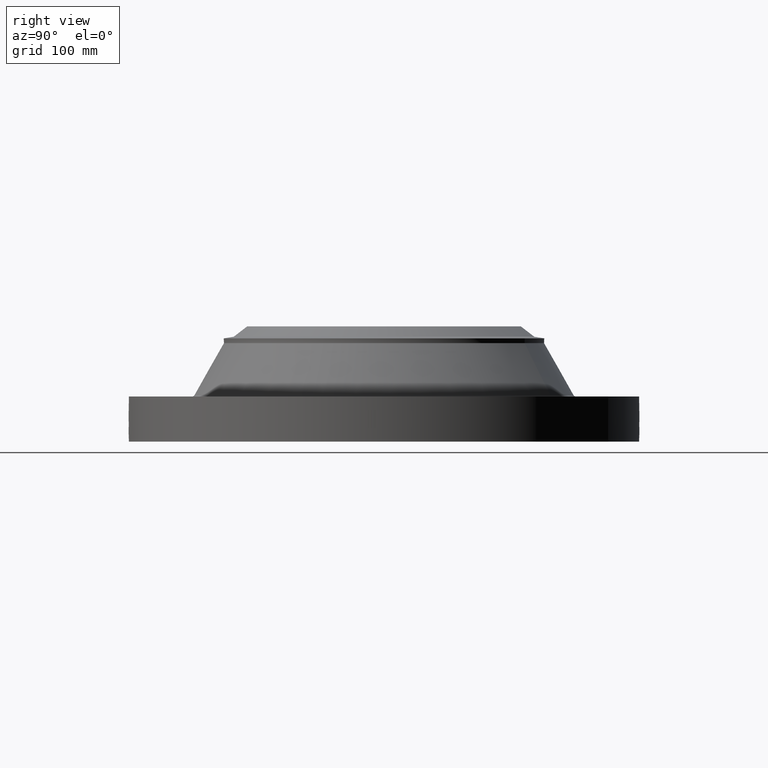
[diagram: clean part render]
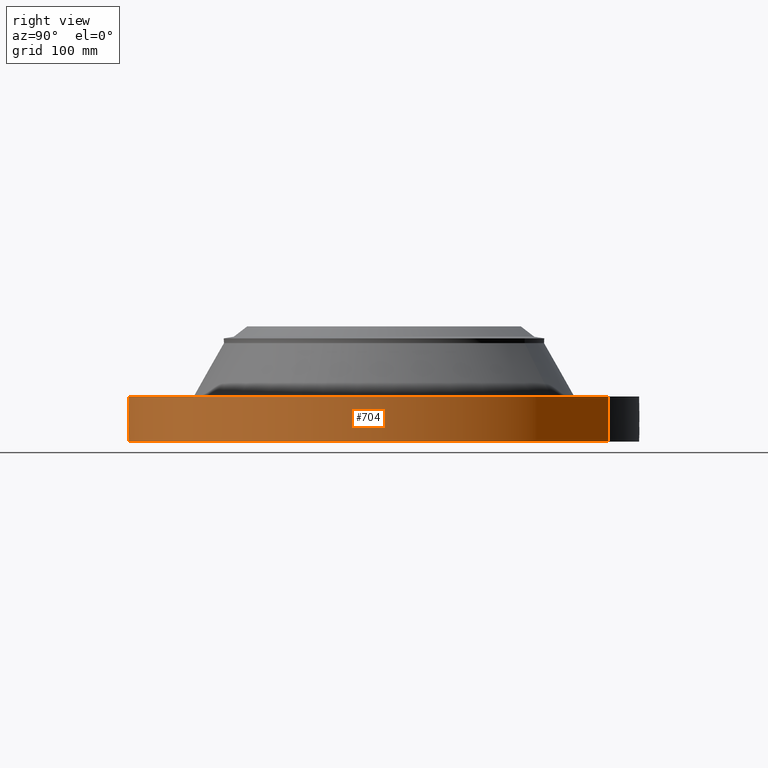
[diagram: same view with one face highlighted and labeled with its STEP entity id]
A machine part, right view. The second image highlights one B-rep face of the part: STEP entity #704.
In plain terms, the highlighted cylindrical surface (partial cylindrical patch) has radius 323.85 mm, axis along (0, 0, -1).
Its self-contained STEP definition (entity closure, byte-faithful):
#38=AXIS2_PLACEMENT_3D('Cylinder Axis2P3D',#35,#36,#37) ;
#169=AXIS2_PLACEMENT_3D('Circle Axis2P3D',#167,#168,$) ;
#608=AXIS2_PLACEMENT_3D('Circle Axis2P3D',#606,#607,$) ;
#35=CARTESIAN_POINT('Axis2P3D Location',(0.,0.,2.93500000001)) ;
#44=CARTESIAN_POINT('Vertex',(-6.11267561723,-11.1891776641,0.0600000000002)) ;
#46=CARTESIAN_POINT('Vertex',(6.11267561723,11.1891776641,0.0600000000002)) ;
#49=CARTESIAN_POINT('Line Origine',(-6.11267561723,-11.1891776641,1.185)) ;
#53=CARTESIAN_POINT('Vertex',(-6.11267561723,-11.1891776641,2.31000000001)) ;
#60=CARTESIAN_POINT('Vertex',(6.11267561723,11.1891776641,2.31000000001)) ;
#63=CARTESIAN_POINT('Line Origine',(6.11267561723,11.1891776641,1.185)) ;
#167=CARTESIAN_POINT('Axis2P3D Location',(0.,0.,0.0600000000002)) ;
#606=CARTESIAN_POINT('Axis2P3D Location',(0.,0.,2.31000000001)) ;
#618=CARTESIAN_POINT('Control Point',(0.000716221076503,-12.7499999799,1.29411846088)) ;
#619=CARTESIAN_POINT('Control Point',(0.0192056909289,-12.7499989413,1.2940811042)) ;
#620=CARTESIAN_POINT('Control Point',(0.0376918862538,-12.749957358,1.29259135831)) ;
#621=CARTESIAN_POINT('Control Point',(0.0559484449228,-12.7498772454,1.2896676695)) ;
#622=CARTESIAN_POINT('Vertex',(0.000715799889839,-12.74999998,1.29411851024)) ;
#624=CARTESIAN_POINT('Vertex',(0.0559392979336,-12.7498775403,1.28966915328)) ;
#628=CARTESIAN_POINT('Control Point',(0.055939200232,-12.749877286,1.28966859718)) ;
#629=CARTESIAN_POINT('Control Point',(0.0961344830542,-12.749700932,1.28514555478)) ;
#630=CARTESIAN_POINT('Control Point',(0.135662252488,-12.7493301535,1.27330266976)) ;
#631=CARTESIAN_POINT('Control Point',(0.172040385174,-12.7488392455,1.25494868271)) ;
#632=CARTESIAN_POINT('Vertex',(0.172040385174,-12.7488392455,1.25494868271)) ;
#636=CARTESIAN_POINT('Control Point',(0.030810823393,-12.7499627723,0.531174008101)) ;
#637=CARTESIAN_POINT('Control Point',(0.0999546104459,-12.7497956834,0.539935338982)) ;
#638=CARTESIAN_POINT('Control Point',(0.166759413663,-12.7491655306,0.564146634126)) ;
#639=CARTESIAN_POINT('Control Point',(0.226389957233,-12.7481446874,0.602973146401)) ;
#640=CARTESIAN_POINT('Control Point',(0.298759222751,-12.7465677593,0.677010268031)) ;
#641=CARTESIAN_POINT('Control Point',(0.343480925529,-12.7453828601,0.767215712475)) ;
#642=CARTESIAN_POINT('Control Point',(0.35492620966,-12.745063309,0.797930279804)) ;
#643=CARTESIAN_POINT('Control Point',(0.373429793533,-12.7445343214,0.869245218125)) ;
#644=CARTESIAN_POINT('Control Point',(0.37510475111,-12.7444792671,0.94259696981)) ;
#645=CARTESIAN_POINT('Control Point',(0.370729704741,-12.7446111718,0.983234573259)) ;
#646=CARTESIAN_POINT('Control Point',(0.348316563881,-12.745269017,1.07561109925)) ;
#647=CARTESIAN_POINT('Control Point',(0.299005494497,-12.7465456064,1.15696170482)) ;
#648=CARTESIAN_POINT('Control Point',(0.262643848587,-12.7473952472,1.19786903557)) ;
#649=CARTESIAN_POINT('Control Point',(0.219548986002,-12.7481981363,1.23097900004)) ;
#650=CARTESIAN_POINT('Control Point',(0.172040385174,-12.7488392455,1.25494868271)) ;
#651=CARTESIAN_POINT('Vertex',(0.030810823393,-12.7499627723,0.531174008101)) ;
#655=CARTESIAN_POINT('Control Point',(0.030810823393,-12.7499627723,0.531174008101)) ;
#656=CARTESIAN_POINT('Control Point',(0.0205353999324,-12.7499876033,0.530872367684)) ;
#657=CARTESIAN_POINT('Control Point',(0.0102531277833,-12.7500000022,0.530939425497)) ;
#658=CARTESIAN_POINT('Control Point',(-2.72878352125E-006,-12.7500000001,0.531374667805)) ;
#659=CARTESIAN_POINT('Vertex',(-2.72878354373E-006,-12.7500000001,0.531374667805)) ;
#663=CARTESIAN_POINT('Control Point',(-0.192797685506,-12.7485422325,0.587096993604)) ;
#664=CARTESIAN_POINT('Control Point',(-0.149071702689,-12.7492035056,0.561854438163)) ;
#665=CARTESIAN_POINT('Control Point',(-0.101128961577,-12.7497293521,0.543715224091)) ;
#666=CARTESIAN_POINT('Control Point',(-0.0508105141079,-12.7499999892,0.53353086573)) ;
#667=CARTESIAN_POINT('Control Point',(-2.7287835439E-006,-12.7500000001,0.531374667805)) ;
#668=CARTESIAN_POINT('Vertex',(-0.192797685506,-12.7485422325,0.587096993604)) ;
#672=CARTESIAN_POINT('Control Point',(-0.192797685506,-12.7485422325,0.587096993604)) ;
#673=CARTESIAN_POINT('Control Point',(-0.249749528886,-12.7476809432,0.619974701105)) ;
#674=CARTESIAN_POINT('Control Point',(-0.300014616724,-12.7466026779,0.664147622516)) ;
#675=CARTESIAN_POINT('Control Point',(-0.340461272019,-12.7455024632,0.718136963349)) ;
#676=CARTESIAN_POINT('Control Point',(-0.385069983961,-12.7441957942,0.816179520893)) ;
#677=CARTESIAN_POINT('Control Point',(-0.393917718123,-12.7439118253,0.921478504901)) ;
#678=CARTESIAN_POINT('Control Point',(-0.391894356733,-12.743976098,0.961571301736)) ;
#679=CARTESIAN_POINT('Control Point',(-0.377905154873,-12.7444129307,1.03639829575)) ;
#680=CARTESIAN_POINT('Control Point',(-0.345953377772,-12.7453207298,1.10477756533)) ;
#681=CARTESIAN_POINT('Control Point',(-0.326955705342,-12.7458335864,1.13519565156)) ;
#682=CARTESIAN_POINT('Control Point',(-0.2650533611,-12.7473627065,1.21210536796)) ;
#683=CARTESIAN_POINT('Control Point',(-0.181582136232,-12.748888363,1.26540228338)) ;
#684=CARTESIAN_POINT('Control Point',(-0.122355690612,-12.749638806,1.28761817336)) ;
#685=CARTESIAN_POINT('Control Point',(-0.0606924292253,-12.7500001232,1.29712989006)) ;
#686=CARTESIAN_POINT('Control Point',(2.58579355128E-005,-12.75,1.29415298431)) ;
#687=CARTESIAN_POINT('Vertex',(2.58579355444E-005,-12.75,1.29415298431)) ;
#691=CARTESIAN_POINT('Control Point',(0.000715799880079,-12.74999998,1.29411851023)) ;
#692=CARTESIAN_POINT('Control Point',(0.000370853334379,-12.7499999993,1.29413606983)) ;
#693=CARTESIAN_POINT('Control Point',(2.58579407768E-005,-12.75,1.2941529843)) ;
#36=DIRECTION('Axis2P3D Direction',(0.,0.,-0.0393700787402)) ;
#37=DIRECTION('Axis2P3D XDirection',(0.0188750212049,0.0345504945626,0.)) ;
#50=DIRECTION('Vector Direction',(0.,0.,-0.0393700787402)) ;
#64=DIRECTION('Vector Direction',(0.,0.,-0.0393700787402)) ;
#168=DIRECTION('Axis2P3D Direction',(0.,0.,-0.0393700787402)) ;
#607=DIRECTION('Axis2P3D Direction',(0.,0.,-0.0393700787402)) ;
#51=VECTOR('Line Direction',#50,0.0393700787402) ;
#65=VECTOR('Line Direction',#64,0.0393700787402) ;
#612=ORIENTED_EDGE('',*,*,#171,.F.) ;
#613=ORIENTED_EDGE('',*,*,#67,.T.) ;
#614=ORIENTED_EDGE('',*,*,#610,.T.) ;
#615=ORIENTED_EDGE('',*,*,#55,.F.) ;
#696=ORIENTED_EDGE('',*,*,#626,.T.) ;
#697=ORIENTED_EDGE('',*,*,#634,.T.) ;
#698=ORIENTED_EDGE('',*,*,#653,.F.) ;
#699=ORIENTED_EDGE('',*,*,#661,.T.) ;
#700=ORIENTED_EDGE('',*,*,#670,.F.) ;
#701=ORIENTED_EDGE('',*,*,#689,.T.) ;
#702=ORIENTED_EDGE('',*,*,#694,.F.) ;
#703=FACE_BOUND('',#695,.T.) ;
#704=ADVANCED_FACE('PartBody',(#616,#703),#39,.T.) ;
#617=B_SPLINE_CURVE_WITH_KNOTS('',3,(#618,#619,#620,#621),.UNSPECIFIED.,.F.,.U.,(4,4),(34.6164487394,36.6676805702),.UNSPECIFIED.) ;
#627=B_SPLINE_CURVE_WITH_KNOTS('',3,(#628,#629,#630,#631),.UNSPECIFIED.,.F.,.U.,(4,4),(0.,4.54498819022),.UNSPECIFIED.) ;
#635=B_SPLINE_CURVE_WITH_KNOTS('',5,(#636,#637,#638,#639,#640,#641,#642,#643,#644,#645,#646,#647,#648,#649,#650),.UNSPECIFIED.,.F.,.U.,(6,3,3,3,6),(0.,12.1125843963,17.9739548063,25.3575269866,35.250193096),.UNSPECIFIED.) ;
#654=B_SPLINE_CURVE_WITH_KNOTS('',3,(#655,#656,#657,#658),.UNSPECIFIED.,.F.,.U.,(4,4),(0.,1.07185696031),.UNSPECIFIED.) ;
#662=B_SPLINE_CURVE_WITH_KNOTS('',4,(#663,#664,#665,#666,#667),.UNSPECIFIED.,.F.,.U.,(5,5),(0.,7.08001036121),.UNSPECIFIED.) ;
#671=B_SPLINE_CURVE_WITH_KNOTS('',5,(#672,#673,#674,#675,#676,#677,#678,#679,#680,#681,#682,#683,#684,#685,#686),.UNSPECIFIED.,.F.,.U.,(6,3,3,3,6),(0.,11.5268890476,18.5780212258,24.9818144866,36.3313223078),.UNSPECIFIED.) ;
#690=B_SPLINE_CURVE_WITH_KNOTS('',2,(#691,#692,#693),.UNSPECIFIED.,.F.,.U.,(3,3),(1.02805109055,1.05384581088),.UNSPECIFIED.) ;
#170=CIRCLE('generated circle',#169,12.7500000001) ;
#609=CIRCLE('generated circle',#608,12.7500000001) ;
#39=CYLINDRICAL_SURFACE('generated cylinder',#38,12.7500000001) ;
#55=EDGE_CURVE('',#45,#54,#52,.F.) ;
#67=EDGE_CURVE('',#47,#61,#66,.F.) ;
#171=EDGE_CURVE('',#47,#45,#170,.T.) ;
#610=EDGE_CURVE('',#61,#54,#609,.T.) ;
#626=EDGE_CURVE('',#623,#625,#617,.T.) ;
#634=EDGE_CURVE('',#625,#633,#627,.T.) ;
#653=EDGE_CURVE('',#652,#633,#635,.T.) ;
#661=EDGE_CURVE('',#652,#660,#654,.T.) ;
#670=EDGE_CURVE('',#669,#660,#662,.T.) ;
#689=EDGE_CURVE('',#669,#688,#671,.T.) ;
#694=EDGE_CURVE('',#623,#688,#690,.T.) ;
#611=EDGE_LOOP('',(#612,#613,#614,#615)) ;
#695=EDGE_LOOP('',(#696,#697,#698,#699,#700,#701,#702)) ;
#616=FACE_OUTER_BOUND('',#611,.T.) ;
#52=LINE('Line',#49,#51) ;
#66=LINE('Line',#63,#65) ;
#45=VERTEX_POINT('',#44) ;
#47=VERTEX_POINT('',#46) ;
#54=VERTEX_POINT('',#53) ;
#61=VERTEX_POINT('',#60) ;
#623=VERTEX_POINT('',#622) ;
#625=VERTEX_POINT('',#624) ;
#633=VERTEX_POINT('',#632) ;
#652=VERTEX_POINT('',#651) ;
#660=VERTEX_POINT('',#659) ;
#669=VERTEX_POINT('',#668) ;
#688=VERTEX_POINT('',#687) ;